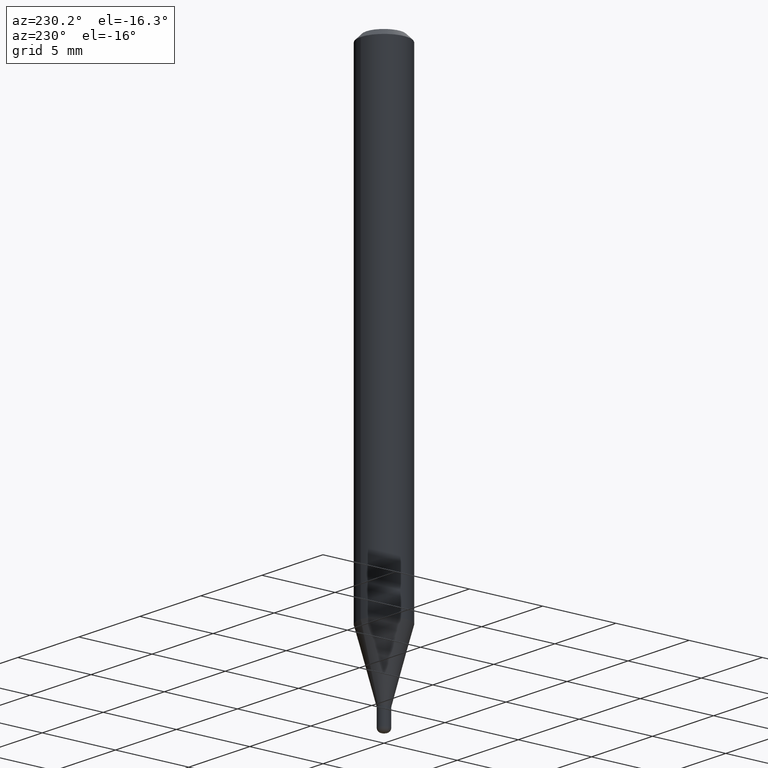
[diagram: clean part render]
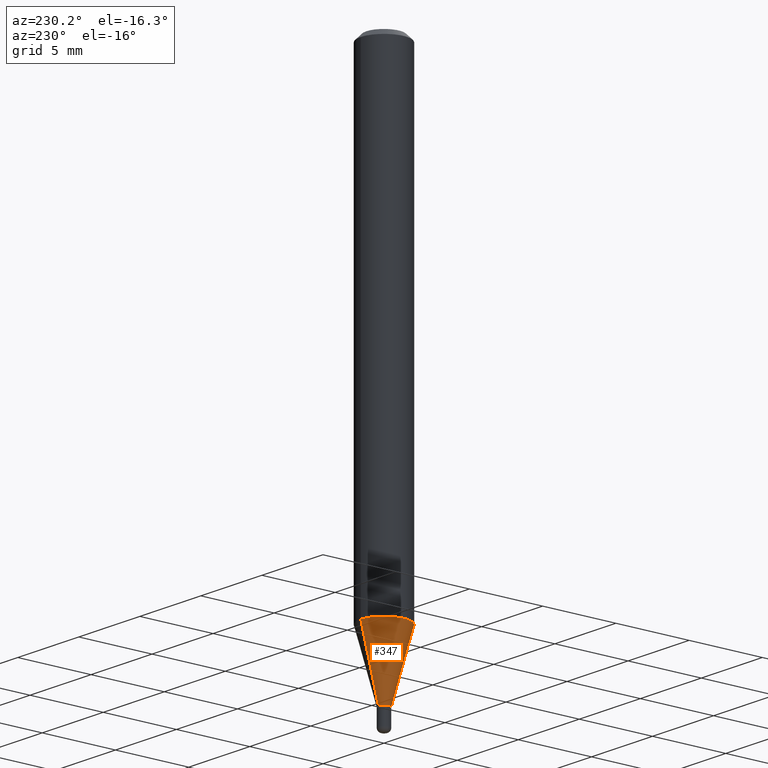
[diagram: same view with one face highlighted and labeled with its STEP entity id]
A machine part, auxiliary view. The second image highlights one B-rep face of the part: STEP entity #347.
In plain terms, the highlighted conical surface has half-angle 15 deg.
Its self-contained STEP definition (entity closure, byte-faithful):
#28 = VECTOR ( 'NONE', #380, 39.37007874015748854 ) ;
#31 = CARTESIAN_POINT ( 'NONE',  ( -1.047444401652589802E-16, -0.01500000000000509086, -1.445000000000000284 ) ) ;
#72 = CARTESIAN_POINT ( 'NONE',  ( 1.065814103640506706E-16, 0.01499999999999499997, -1.445000000000000284 ) ) ;
#93 = AXIS2_PLACEMENT_3D ( 'NONE', #193, #148, #138 ) ;
#99 = ORIENTED_EDGE ( 'NONE', *, *, #360, .F. ) ;
#114 = ORIENTED_EDGE ( 'NONE', *, *, #276, .T. ) ;
#118 = VERTEX_POINT ( 'NONE', #262 ) ;
#126 = CONICAL_SURFACE ( 'NONE', #93, 0.01500000000000004455, 0.2617993877991494078 ) ;
#138 = DIRECTION ( 'NONE',  ( -6.982962677686266711E-15, -1.000000000000000000, 0.000000000000000000 ) ) ;
#141 = LINE ( 'NONE', #72, #28 ) ;
#146 = LINE ( 'NONE', #386, #375 ) ;
#148 = DIRECTION ( 'NONE',  ( -2.445486429573083164E-29, 3.491456101148545241E-15, 1.000000000000000000 ) ) ;
#184 = DIRECTION ( 'NONE',  ( -2.445486429573083164E-29, 3.491456101148545241E-15, 1.000000000000000000 ) ) ;
#189 = DIRECTION ( 'NONE',  ( -2.445486429573083164E-29, 3.491456101148545241E-15, 1.000000000000000000 ) ) ;
#193 = CARTESIAN_POINT ( 'NONE',  ( 3.533727890733106107E-29, -5.045154066159648808E-15, -1.445000000000000284 ) ) ;
#211 = CIRCLE ( 'NONE', #495, 0.01500000000000004455 ) ;
#213 = EDGE_CURVE ( 'NONE', #328, #345, #489, .T. ) ;
#226 = CARTESIAN_POINT ( 'NONE',  ( 4.440892098500932831E-16, 0.06249999999999555911, -1.267727586640479132 ) ) ;
#262 = CARTESIAN_POINT ( 'NONE',  ( 2.753353101070722973E-16, 0.01499999999999500171, -1.445000000000000284 ) ) ;
#268 = ORIENTED_EDGE ( 'NONE', *, *, #314, .T. ) ;
#276 = EDGE_CURVE ( 'NONE', #118, #410, #211, .T. ) ;
#314 = EDGE_CURVE ( 'NONE', #410, #345, #146, .T. ) ;
#315 = DIRECTION ( 'NONE',  ( -6.982962677686265922E-15, -1.000000000000000000, 4.370956789862821150E-15 ) ) ;
#317 = CARTESIAN_POINT ( 'NONE',  ( -4.364351673553607559E-16, -0.06250000000000444089, -1.267727586640478465 ) ) ;
#328 = VERTEX_POINT ( 'NONE', #226 ) ;
#345 = VERTEX_POINT ( 'NONE', #317 ) ;
#347 = ADVANCED_FACE ( 'NONE', ( #388 ), #126, .T. ) ;
#350 = DIRECTION ( 'NONE',  ( -6.982962677686266711E-15, -1.000000000000000000, 0.000000000000000000 ) ) ;
#360 = EDGE_CURVE ( 'NONE', #118, #328, #141, .T. ) ;
#375 = VECTOR ( 'NONE', #470, 39.37007874015748854 ) ;
#380 = DIRECTION ( 'NONE',  ( 1.839019923739594004E-15, 0.2588190451025240701, 0.9659258262890673130 ) ) ;
#386 = CARTESIAN_POINT ( 'NONE',  ( -1.047444401652589802E-16, -0.01500000000000509086, -1.445000000000000284 ) ) ;
#388 = FACE_OUTER_BOUND ( 'NONE', #441, .T. ) ;
#390 = CARTESIAN_POINT ( 'NONE',  ( 3.100210609524725780E-29, -4.426215216970220777E-15, -1.267727586640478687 ) ) ;
#396 = CARTESIAN_POINT ( 'NONE',  ( 3.533727890733106107E-29, -5.045154066159648808E-15, -1.445000000000000284 ) ) ;
#410 = VERTEX_POINT ( 'NONE', #31 ) ;
#441 = EDGE_LOOP ( 'NONE', ( #99, #114, #268, #500 ) ) ;
#470 = DIRECTION ( 'NONE',  ( -1.807323732225323828E-15, -0.2588190451025172978, 0.9659258262890690894 ) ) ;
#478 = AXIS2_PLACEMENT_3D ( 'NONE', #390, #189, #315 ) ;
#489 = CIRCLE ( 'NONE', #478, 0.06250000000000000000 ) ;
#495 = AXIS2_PLACEMENT_3D ( 'NONE', #396, #184, #350 ) ;
#500 = ORIENTED_EDGE ( 'NONE', *, *, #213, .F. ) ;